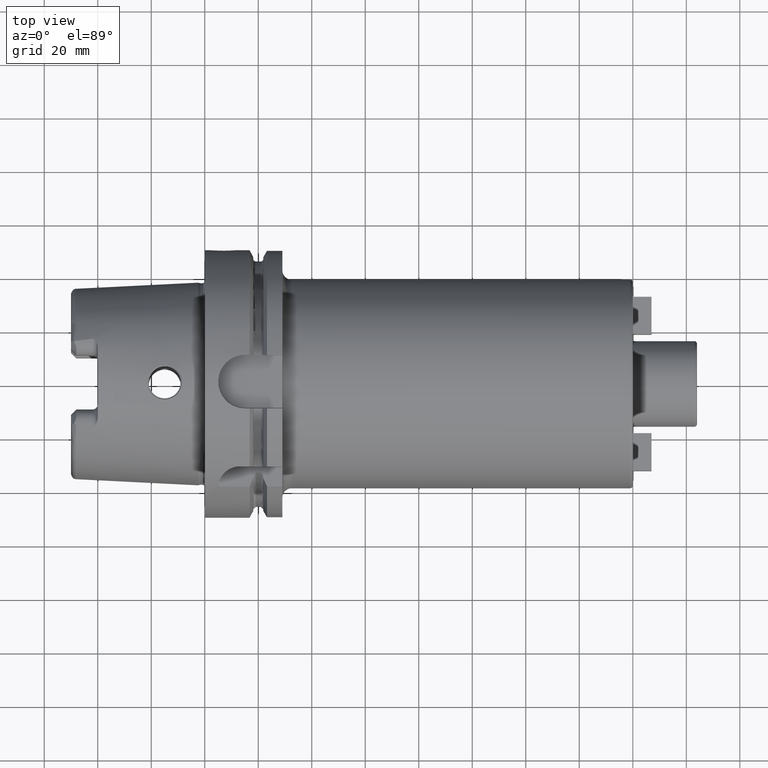
[diagram: clean part render]
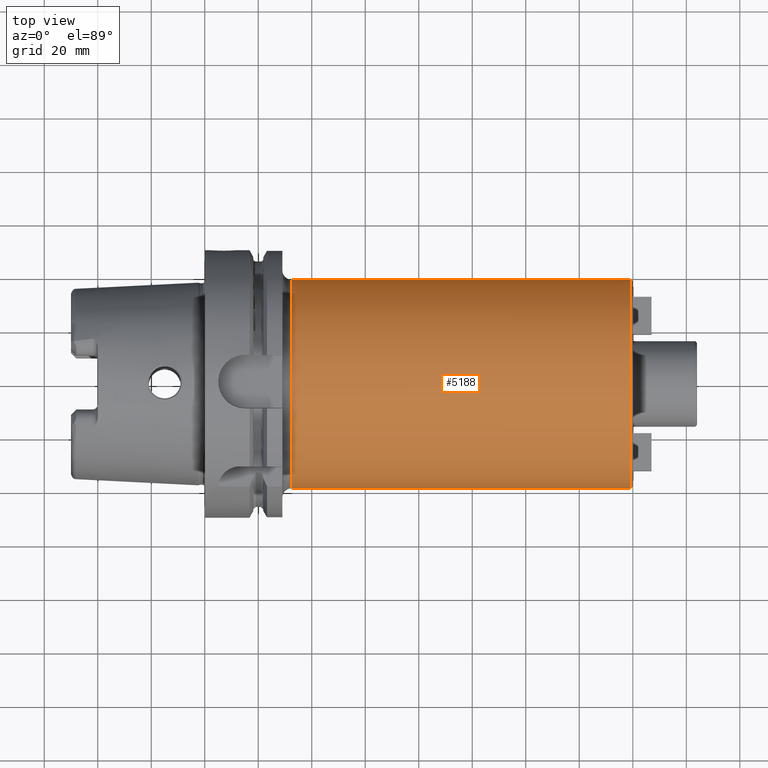
[diagram: same view with one face highlighted and labeled with its STEP entity id]
A machine part, top view. The second image highlights one B-rep face of the part: STEP entity #5188.
In plain terms, the highlighted cylindrical surface (partial cylindrical patch) has radius 39 mm, axis along (1, 0, 0).
Its self-contained STEP definition (entity closure, byte-faithful):
#1820=CARTESIAN_POINT('',(1.59E2,0.E0,0.E0));
#1821=DIRECTION('',(-1.E0,0.E0,0.E0));
#1822=DIRECTION('',(0.E0,-1.E0,0.E0));
#1823=AXIS2_PLACEMENT_3D('',#1820,#1821,#1822);
#1825=CARTESIAN_POINT('',(3.25E1,0.E0,0.E0));
#1826=DIRECTION('',(1.E0,0.E0,0.E0));
#1827=DIRECTION('',(0.E0,1.E0,0.E0));
#1828=AXIS2_PLACEMENT_3D('',#1825,#1826,#1827);
#1845=DIRECTION('',(-1.E0,0.E0,0.E0));
#1846=VECTOR('',#1845,1.265E2);
#1847=CARTESIAN_POINT('',(1.59E2,3.9E1,-1.458794267757E-14));
#1848=LINE('',#1847,#1846);
#1854=DIRECTION('',(-1.E0,0.E0,0.E0));
#1855=VECTOR('',#1854,1.265E2);
#1856=CARTESIAN_POINT('',(1.59E2,-3.9E1,1.337224969379E-14));
#1857=LINE('',#1856,#1855);
#3267=CARTESIAN_POINT('',(3.25E1,-3.9E1,0.E0));
#3268=CARTESIAN_POINT('',(3.25E1,3.9E1,0.E0));
#3269=VERTEX_POINT('',#3267);
#3270=VERTEX_POINT('',#3268);
#3271=CARTESIAN_POINT('',(1.59E2,3.9E1,0.E0));
#3272=CARTESIAN_POINT('',(1.59E2,-3.9E1,0.E0));
#3273=VERTEX_POINT('',#3271);
#3274=VERTEX_POINT('',#3272);
#5174=CARTESIAN_POINT('',(2.125E1,0.E0,0.E0));
#5175=DIRECTION('',(1.E0,0.E0,0.E0));
#5176=DIRECTION('',(0.E0,-1.E0,0.E0));
#5177=AXIS2_PLACEMENT_3D('',#5174,#5175,#5176);
#5178=CYLINDRICAL_SURFACE('',#5177,3.9E1);
#5180=ORIENTED_EDGE('',*,*,#5179,.F.);
#5182=ORIENTED_EDGE('',*,*,#5181,.T.);
#5183=ORIENTED_EDGE('',*,*,#5168,.F.);
#5185=ORIENTED_EDGE('',*,*,#5184,.F.);
#5186=EDGE_LOOP('',(#5180,#5182,#5183,#5185));
#5187=FACE_OUTER_BOUND('',#5186,.F.);
#5188=ADVANCED_FACE('',(#5187),#5178,.T.);
#1824=CIRCLE('',#1823,3.9E1);
#1829=CIRCLE('',#1828,3.9E1);
#5168=EDGE_CURVE('',#3270,#3269,#1829,.T.);
#5179=EDGE_CURVE('',#3274,#3273,#1824,.T.);
#5181=EDGE_CURVE('',#3274,#3269,#1857,.T.);
#5184=EDGE_CURVE('',#3273,#3270,#1848,.T.);